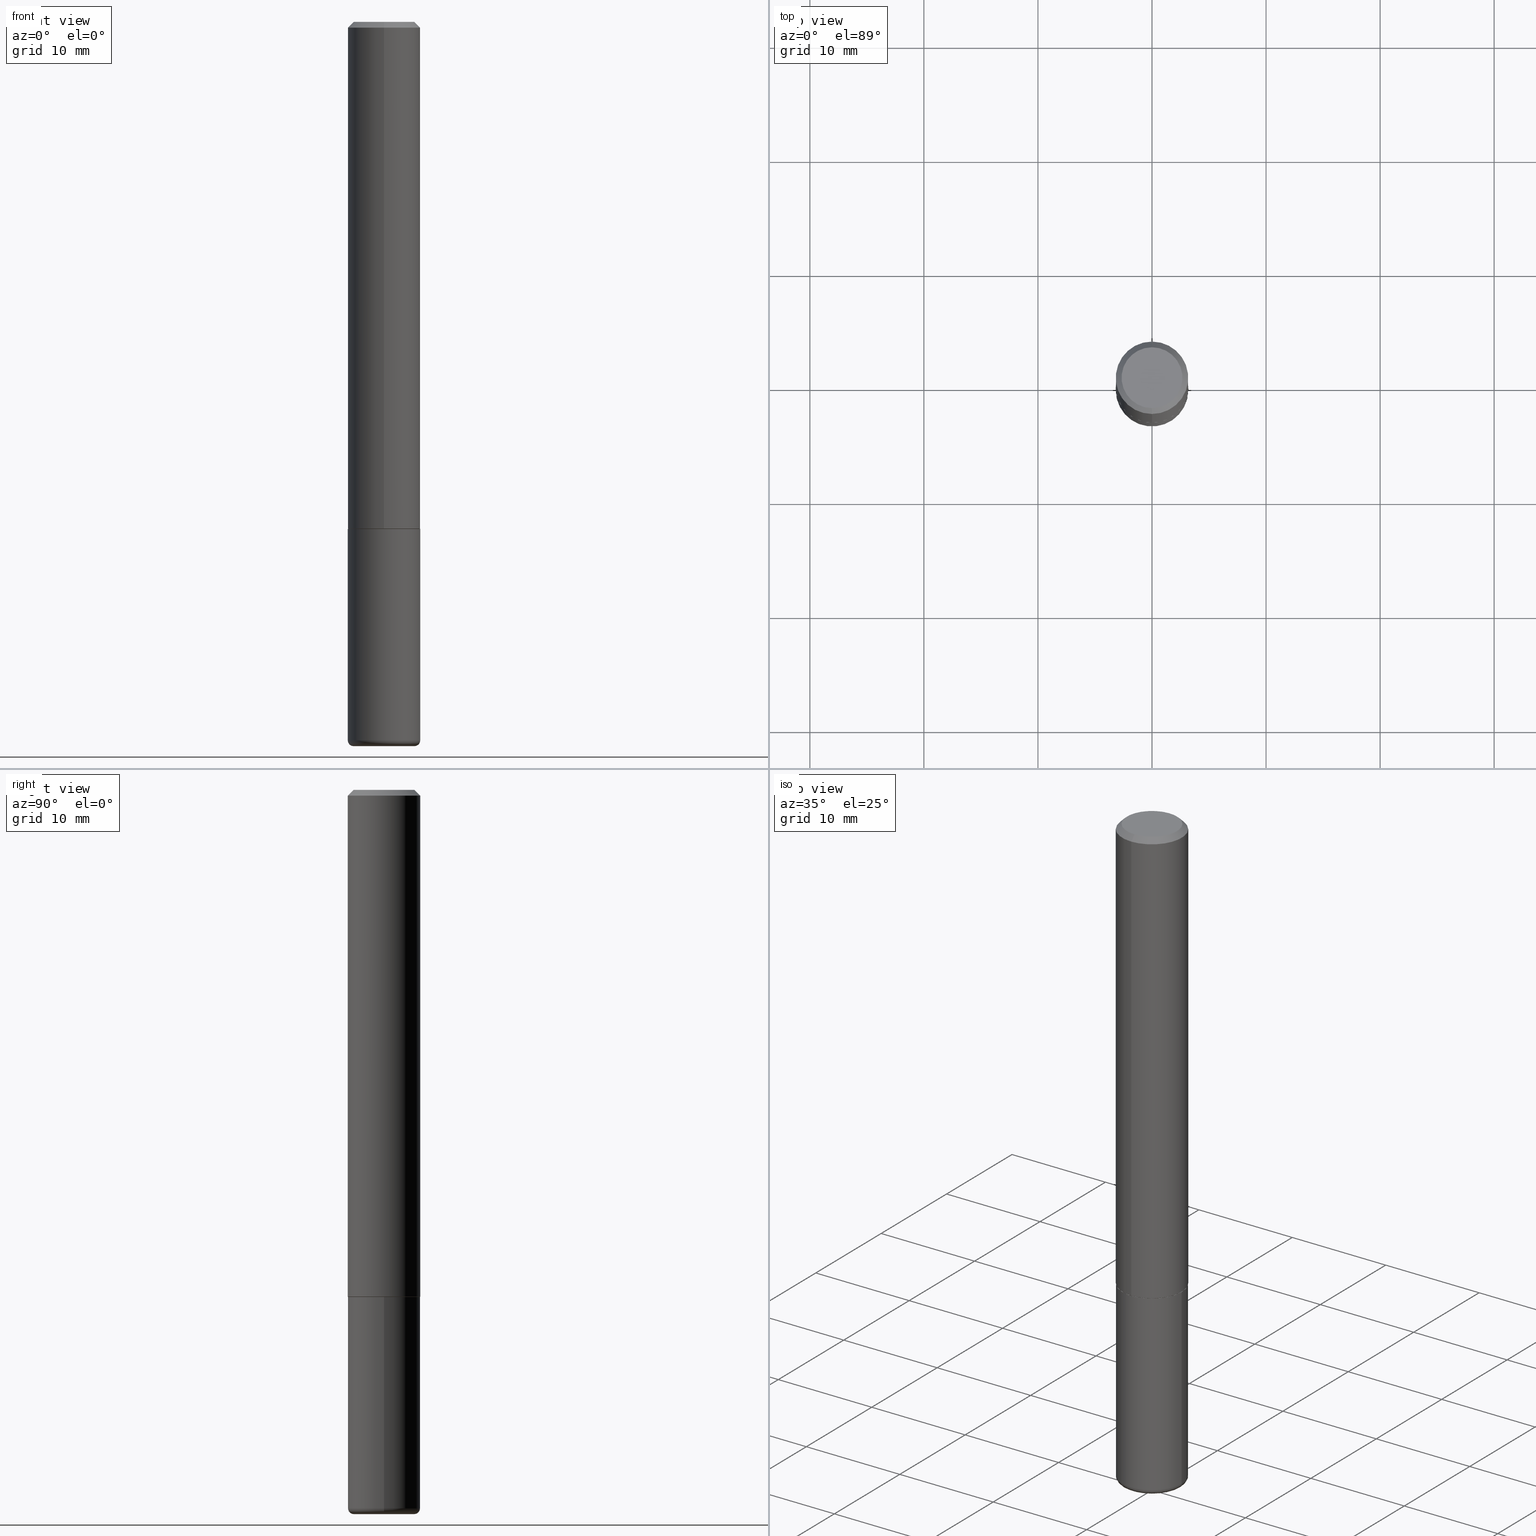
[diagram: canonical four-view strip — front | top / right | iso, engineering-drawing reading convention]
A machine part, canonical four-view strip (front | top / right | iso — engineering-drawing reading convention). The complete STEP part file that produces these views, byte-faithful:
ISO-10303-21;
HEADER;
FILE_DESCRIPTION (( 'STEP AP203' ),
    '1' );
FILE_NAME ('38321.STEP',
    '2024-03-02T22:40:24',
    ( '' ),
    ( '' ),
    'SwSTEP 2.0',
    'SolidWorks 2023',
    '' );
FILE_SCHEMA (( 'CONFIG_CONTROL_DESIGN' ));
ENDSEC;

DATA;
#1 = AXIS2_PLACEMENT_3D ( 'NONE', #257, #198, #285 ) ;
#2 = APPLICATION_PROTOCOL_DEFINITION ( 'international standard', 'config_control_design', 1994, #5 ) ;
#3 = TOROIDAL_SURFACE ( 'NONE', #162, 0.1050000000000000100, 0.02000000000000015307 ) ;
#4 = PERSON_AND_ORGANIZATION ( #102, #15 ) ;
#5 = APPLICATION_CONTEXT ( 'configuration controlled 3d designs of mechanical parts and assemblies' ) ;
#6 = AXIS2_PLACEMENT_3D ( 'NONE', #339, #272, #114 ) ;
#7 = AXIS2_PLACEMENT_3D ( 'NONE', #172, #295, #64 ) ;
#8 = ADVANCED_FACE ( 'NONE', ( #385 ), #233, .T. ) ;
#9 = DIRECTION ( 'NONE',  ( -2.445468806185136597E-29, 3.491481338843145583E-15, 1.000000000000000000 ) ) ;
#10 = ORIENTED_EDGE ( 'NONE', *, *, #237, .F. ) ;
#11 = ORIENTED_EDGE ( 'NONE', *, *, #268, .T. ) ;
#12 = ADVANCED_FACE ( 'NONE', ( #173 ), #296, .T. ) ;
#13 = CARTESIAN_POINT ( 'NONE',  ( 8.881784197001260212E-16, 0.1250000000000001110, -4.364281115688010942E-16 ) ) ;
#14 = VERTEX_POINT ( 'NONE', #104 ) ;
#15 = ORGANIZATION ( 'UNSPECIFIED', 'UNSPECIFIED', '' ) ;
#16 = APPROVAL_ROLE ( '' ) ;
#17 = PLANE ( 'NONE',  #142 ) ;
#18 = ORIENTED_EDGE ( 'NONE', *, *, #237, .T. ) ;
#19 = CALENDAR_DATE ( 2024, 2, 3 ) ;
#20 = LINE ( 'NONE', #372, #78 ) ;
#21 = VERTEX_POINT ( 'NONE', #361 ) ;
#22 = APPROVAL_ROLE ( '' ) ;
#23 = FACE_OUTER_BOUND ( 'NONE', #373, .T. ) ;
#24 = AXIS2_PLACEMENT_3D ( 'NONE', #278, #405, #217 ) ;
#25 = ADVANCED_FACE ( 'NONE', ( #61 ), #343, .F. ) ;
#26 = AXIS2_PLACEMENT_3D ( 'NONE', #319, #413, #415 ) ;
#27 = CARTESIAN_POINT ( 'NONE',  ( -0.1050000000000000100, -7.912803847782896575E-15, -2.480000000000000426 ) ) ;
#28 = ORIENTED_EDGE ( 'NONE', *, *, #360, .F. ) ;
#29 = ORIENTED_EDGE ( 'NONE', *, *, #393, .F. ) ;
#30 = DIRECTION ( 'NONE',  ( -2.445508222420686392E-29, 3.491424892550405598E-15, 1.000000000000000000 ) ) ;
#31 = ORIENTED_EDGE ( 'NONE', *, *, #42, .F. ) ;
#32 = CLOSED_SHELL ( 'NONE', ( #353, #12, #347, #170, #8, #239, #223, #25 ) ) ;
#33 = DIRECTION ( 'NONE',  ( 6.982962677686265922E-15, 1.000000000000000000, -3.483106191921935554E-15 ) ) ;
#34 = ORIENTED_EDGE ( 'NONE', *, *, #128, .T. ) ;
#35 = ADVANCED_BREP_SHAPE_REPRESENTATION ( '38321', ( #157, #171, #211 ), #168 ) ;
#36 = FACE_OUTER_BOUND ( 'NONE', #74, .T. ) ;
#37 = DIRECTION ( 'NONE',  ( -2.445508222420686392E-29, 3.491424892550405598E-15, 1.000000000000000000 ) ) ;
#38 = ADVANCED_FACE ( 'NONE', ( #23 ), #17, .F. ) ;
#39 = VECTOR ( 'NONE', #281, 39.37007874015748143 ) ;
#40 = PERSON_AND_ORGANIZATION_ROLE ( 'classification_officer' ) ;
#41 = CYLINDRICAL_SURFACE ( 'NONE', #400, 0.1250000000000000000 ) ;
#42 = EDGE_CURVE ( 'NONE', #251, #124, #85, .T. ) ;
#43 = CIRCLE ( 'NONE', #397, 0.1050000000000000100 ) ;
#44 = AXIS2_PLACEMENT_3D ( 'NONE', #345, #289, #231 ) ;
#45 = ORIENTED_EDGE ( 'NONE', *, *, #268, .F. ) ;
#46 = APPROVAL_ROLE ( '' ) ;
#47 = CARTESIAN_POINT ( 'NONE',  ( 4.279570410823989044E-29, -6.110092342975505460E-15, -1.750000000000000222 ) ) ;
#48 = ORIENTED_EDGE ( 'NONE', *, *, #139, .F. ) ;
#49 = CC_DESIGN_PERSON_AND_ORGANIZATION_ASSIGNMENT ( #4, #116, ( #253 ) ) ;
#50 = DIRECTION ( 'NONE',  ( 6.982962677686265922E-15, 1.000000000000000000, -3.491424892550405992E-15 ) ) ;
#51 = CALENDAR_DATE ( 2024, 2, 3 ) ;
#52 = CARTESIAN_POINT ( 'NONE',  ( -8.658873720330540358E-16, -0.1240000000000061053, -1.749999999999999556 ) ) ;
#53 = ORIENTED_EDGE ( 'NONE', *, *, #132, .T. ) ;
#54 = APPROVAL_STATUS ( 'not_yet_approved' ) ;
#55 = CALENDAR_DATE ( 2024, 2, 3 ) ;
#56 = CARTESIAN_POINT ( 'NONE',  ( -0.1250000000000000000, 8.881784197001252323E-16, -6.148668862818632227E-30 ) ) ;
#57 = EDGE_CURVE ( 'NONE', #14, #389, #184, .T. ) ;
#58 = VERTEX_POINT ( 'NONE', #213 ) ;
#59 = PERSON_AND_ORGANIZATION ( #102, #15 ) ;
#60 = COORDINATED_UNIVERSAL_TIME_OFFSET ( 5, 0, .BEHIND. ) ;
#61 = FACE_OUTER_BOUND ( 'NONE', #376, .T. ) ;
#62 = CIRCLE ( 'NONE', #205, 0.1249999999999999861 ) ;
#63 = APPROVAL_STATUS ( 'not_yet_approved' ) ;
#64 = DIRECTION ( 'NONE',  ( 1.000000000000000000, -6.982962677686266711E-15, 4.876176775795935793E-29 ) ) ;
#65 = ORIENTED_EDGE ( 'NONE', *, *, #412, .F. ) ;
#66 = EDGE_CURVE ( 'NONE', #58, #14, #80, .T. ) ;
#67 = DIRECTION ( 'NONE',  ( -2.445508222420686392E-29, 3.491424892550405598E-15, 1.000000000000000000 ) ) ;
#68 = ORIENTED_EDGE ( 'NONE', *, *, #139, .T. ) ;
#69 = ORIENTED_EDGE ( 'NONE', *, *, #261, .F. ) ;
#70 = CARTESIAN_POINT ( 'NONE',  ( -0.1050000000000000100, -7.876664387595318143E-15, -2.500000000000000444 ) ) ;
#71 = CONICAL_SURFACE ( 'NONE', #358, 0.1239999999999999991, 0.7853981633975336552 ) ;
#72 = DIRECTION ( 'NONE',  ( -2.445508222420686392E-29, 3.491424892550405598E-15, 1.000000000000000000 ) ) ;
#73 = CARTESIAN_POINT ( 'NONE',  ( 0.000000000000000000, 0.000000000000000000, 0.000000000000000000 ) ) ;
#74 = EDGE_LOOP ( 'NONE', ( #131, #279, #335, #181 ) ) ;
#75 = EDGE_CURVE ( 'NONE', #251, #328, #410, .T. ) ;
#76 = AXIS2_PLACEMENT_3D ( 'NONE', #356, #326, #235 ) ;
#77 =( NAMED_UNIT ( * ) SI_UNIT ( $, .STERADIAN. ) SOLID_ANGLE_UNIT ( ) );
#78 = VECTOR ( 'NONE', #88, 39.37007874015748143 ) ;
#79 = LOCAL_TIME ( 17, 40, 24.00000000000000000, #366 ) ;
#80 = LINE ( 'NONE', #148, #316 ) ;
#81 = CARTESIAN_POINT ( 'NONE',  ( 6.064762639339139522E-29, -8.658873720331001644E-15, -2.480000000000000426 ) ) ;
#82 = APPROVAL ( #54, 'UNSPECIFIED' ) ;
#83 = PERSON_AND_ORGANIZATION ( #102, #15 ) ;
#84 = DIRECTION ( 'NONE',  ( 1.000000000000000000, -6.982962677686258033E-15, 0.000000000000000000 ) ) ;
#85 = CIRCLE ( 'NONE', #379, 0.1239999999999999991 ) ;
#86 = EDGE_LOOP ( 'NONE', ( #10, #31 ) ) ;
#87 = AXIS2_PLACEMENT_3D ( 'NONE', #229, #242, #303 ) ;
#88 = DIRECTION ( 'NONE',  ( -2.445468806185136877E-29, 3.491481338843145188E-15, 1.000000000000000000 ) ) ;
#89 = ORIENTED_EDGE ( 'NONE', *, *, #360, .T. ) ;
#90 = PLANE ( 'NONE',  #24 ) ;
#91 = DIRECTION ( 'NONE',  ( -6.982962677686265922E-15, -1.000000000000000000, 3.491424892550405203E-15 ) ) ;
#92 = AXIS2_PLACEMENT_3D ( 'NONE', #259, #387, #263 ) ;
#93 = DIRECTION ( 'NONE',  ( -6.982962677686265922E-15, -1.000000000000000000, 3.483106191921935554E-15 ) ) ;
#94 = CC_DESIGN_PERSON_AND_ORGANIZATION_ASSIGNMENT ( #374, #407, ( #196 ) ) ;
#95 = CARTESIAN_POINT ( 'NONE',  ( 6.064762639339139522E-29, -8.658873720331001644E-15, -2.480000000000000426 ) ) ;
#96 = EDGE_CURVE ( 'NONE', #351, #14, #244, .T. ) ;
#97 = CARTESIAN_POINT ( 'NONE',  ( 6.113672015462842613E-29, -8.728703347107866520E-15, -2.500000000000000444 ) ) ;
#98 = FACE_OUTER_BOUND ( 'NONE', #398, .T. ) ;
#99 = CC_DESIGN_PERSON_AND_ORGANIZATION_ASSIGNMENT ( #59, #40, ( #107 ) ) ;
#100 = VECTOR ( 'NONE', #401, 39.37007874015748143 ) ;
#101 = DIRECTION ( 'NONE',  ( 1.000000000000000000, -6.982962677686263555E-15, 0.000000000000000000 ) ) ;
#102 = PERSON ( 'UNSPECIFIED', 'UNSPECIFIED', 'UNSPECIFIED', ('UNSPECIFIED'), ('UNSPECIFIED'), ('UNSPECIFIED') ) ;
#103 = CARTESIAN_POINT ( 'NONE',  ( -8.658873720330540358E-16, -0.1240000000000061053, -1.749999999999999556 ) ) ;
#104 = CARTESIAN_POINT ( 'NONE',  ( -8.575622497214408537E-16, -0.1250000000000000555, -0.01999999999999959102 ) ) ;
#105 = CONICAL_SURFACE ( 'NONE', #283, 0.1239999999999999991, 0.7853981633975336552 ) ;
#106 = DIRECTION ( 'NONE',  ( 2.438088387897960049E-29, -3.491481338843145188E-15, -1.000000000000000000 ) ) ;
#107 = SECURITY_CLASSIFICATION ( '', '', #122 ) ;
#108 = ORIENTED_EDGE ( 'NONE', *, *, #42, .T. ) ;
#109 = APPLICATION_CONTEXT ( 'configuration controlled 3d designs of mechanical parts and assemblies' ) ;
#110 = PERSON_AND_ORGANIZATION ( #102, #15 ) ;
#111 = DIRECTION ( 'NONE',  ( -2.445468806185136597E-29, 3.491481338843145583E-15, 1.000000000000000000 ) ) ;
#112 = APPROVAL ( #183, 'UNSPECIFIED' ) ;
#113 = ORIENTED_EDGE ( 'NONE', *, *, #393, .T. ) ;
#114 = DIRECTION ( 'NONE',  ( -6.982962677686265922E-15, -1.000000000000000000, 3.483106191921935554E-15 ) ) ;
#115 = ORIENTED_EDGE ( 'NONE', *, *, #147, .F. ) ;
#116 = PERSON_AND_ORGANIZATION_ROLE ( 'design_owner' ) ;
#117 = PRODUCT_DEFINITION_SHAPE ( 'NONE', 'NONE',  #402 ) ;
#118 = SHAPE_DEFINITION_REPRESENTATION ( #117, #35 ) ;
#119 = CARTESIAN_POINT ( 'NONE',  ( -3.444620247508492526E-45, 4.917846019601490628E-31, 1.408549853125758547E-16 ) ) ;
#120 = CLOSED_SHELL ( 'NONE', ( #391, #276, #38, #334, #378, #206 ) ) ;
#121 = APPROVAL_PERSON_ORGANIZATION ( #110, #112, #16 ) ;
#122 = SECURITY_CLASSIFICATION_LEVEL ( 'unclassified' ) ;
#123 = DIRECTION ( 'NONE',  ( 4.937700262164543309E-15, 0.7071067811865444641, -0.7071067811865506814 ) ) ;
#124 = VERTEX_POINT ( 'NONE', #52 ) ;
#125 = FACE_OUTER_BOUND ( 'NONE', #246, .T. ) ;
#126 = DIRECTION ( 'NONE',  ( -2.445508222420686392E-29, 3.491424892550405598E-15, 1.000000000000000000 ) ) ;
#127 = FACE_OUTER_BOUND ( 'NONE', #404, .T. ) ;
#128 = EDGE_CURVE ( 'NONE', #351, #290, #178, .T. ) ;
#129 = FACE_OUTER_BOUND ( 'NONE', #417, .T. ) ;
#130 = DIRECTION ( 'NONE',  ( -6.982962677686265922E-15, -1.000000000000000000, 4.406206441393973340E-15 ) ) ;
#131 = ORIENTED_EDGE ( 'NONE', *, *, #214, .F. ) ;
#132 = EDGE_CURVE ( 'NONE', #328, #389, #306, .T. ) ;
#133 = FACE_OUTER_BOUND ( 'NONE', #255, .T. ) ;
#134 = ORIENTED_EDGE ( 'NONE', *, *, #327, .T. ) ;
#135 = VECTOR ( 'NONE', #314, 39.37007874015748143 ) ;
#136 = CARTESIAN_POINT ( 'NONE',  ( 0.000000000000000000, 0.000000000000000000, 0.000000000000000000 ) ) ;
#137 =( NAMED_UNIT ( * ) PLANE_ANGLE_UNIT ( ) SI_UNIT ( $, .RADIAN. ) );
#138 =( CONVERSION_BASED_UNIT ( 'INCH', #359 ) LENGTH_UNIT ( ) NAMED_UNIT ( #294 ) );
#139 = EDGE_CURVE ( 'NONE', #290, #389, #151, .T. ) ;
#140 = CARTESIAN_POINT ( 'NONE',  ( 6.064762639339139522E-29, -8.658873720331001644E-15, -2.480000000000000426 ) ) ;
#141 = PRODUCT_RELATED_PRODUCT_CATEGORY ( 'detail', '', ( #253 ) ) ;
#142 = AXIS2_PLACEMENT_3D ( 'NONE', #47, #106, #304 ) ;
#143 = CIRCLE ( 'NONE', #186, 0.1050000000000000100 ) ;
#144 = LINE ( 'NONE', #103, #150 ) ;
#145 = DIRECTION ( 'NONE',  ( -6.982962677686266711E-15, -1.000000000000000000, 3.491424892550405598E-15 ) ) ;
#146 = VERTEX_POINT ( 'NONE', #219 ) ;
#147 = EDGE_CURVE ( 'NONE', #241, #146, #406, .T. ) ;
#148 = CARTESIAN_POINT ( 'NONE',  ( -8.728703347107841277E-16, -0.1250000000000001110, 4.364281115688010942E-16 ) ) ;
#149 = EDGE_LOOP ( 'NONE', ( #267, #302, #355, #286 ) ) ;
#150 = VECTOR ( 'NONE', #204, 39.37007874015748143 ) ;
#151 = LINE ( 'NONE', #245, #344 ) ;
#152 = ORIENTED_EDGE ( 'NONE', *, *, #128, .F. ) ;
#153 = DATE_AND_TIME ( #51, #260 ) ;
#154 = DIRECTION ( 'NONE',  ( -2.445468806185136597E-29, 3.491481338843145583E-15, 1.000000000000000000 ) ) ;
#155 = ORIENTED_EDGE ( 'NONE', *, *, #261, .T. ) ;
#156 = DATE_AND_TIME ( #19, #330 ) ;
#157 = MANIFOLD_SOLID_BREP ( 'Body-Move/Copy2[1]', #120 ) ;
#158 = CARTESIAN_POINT ( 'NONE',  ( 8.810729923425669213E-16, 0.1239999999999938790, -1.750000000000000666 ) ) ;
#159 = ORIENTED_EDGE ( 'NONE', *, *, #96, .T. ) ;
#160 = PERSON_AND_ORGANIZATION ( #102, #15 ) ;
#161 = CARTESIAN_POINT ( 'NONE',  ( -0.1250000000000000000, -6.496304611953128320E-15, -1.750000000000000222 ) ) ;
#162 = AXIS2_PLACEMENT_3D ( 'NONE', #95, #232, #357 ) ;
#163 = CARTESIAN_POINT ( 'NONE',  ( 4.279639389236200976E-29, -6.109993561963209599E-15, -1.750000000000000222 ) ) ;
#164 = DIRECTION ( 'NONE',  ( 2.445508222420686392E-29, -3.491424892550405598E-15, -1.000000000000000000 ) ) ;
#165 = ORIENTED_EDGE ( 'NONE', *, *, #96, .F. ) ;
#166 = EDGE_LOOP ( 'NONE', ( #180, #53, #188, #305 ) ) ;
#167 = CARTESIAN_POINT ( 'NONE',  ( 8.846257060213682142E-16, 0.1239999999999938790, -1.750000000000000666 ) ) ;
#168 =( GEOMETRIC_REPRESENTATION_CONTEXT ( 3 ) GLOBAL_UNCERTAINTY_ASSIGNED_CONTEXT ( ( #399 ) ) GLOBAL_UNIT_ASSIGNED_CONTEXT ( ( #138, #137, #77 ) ) REPRESENTATION_CONTEXT ( 'NONE', 'WORKASPACE' ) );
#169 = DIRECTION ( 'NONE',  ( -2.445508222420685832E-29, 3.491424892550405992E-15, 1.000000000000000000 ) ) ;
#170 = ADVANCED_FACE ( 'NONE', ( #254 ), #210, .T. ) ;
#171 = MANIFOLD_SOLID_BREP ( 'Body-Move/Copy2[2]', #32 ) ;
#172 = CARTESIAN_POINT ( 'NONE',  ( 0.000000000000000000, 0.000000000000000000, 0.000000000000000000 ) ) ;
#173 = FACE_OUTER_BOUND ( 'NONE', #166, .T. ) ;
#174 = AXIS2_PLACEMENT_3D ( 'NONE', #215, #367, #309 ) ;
#175 = AXIS2_PLACEMENT_3D ( 'NONE', #73, #37, #265 ) ;
#176 = APPROVAL_PERSON_ORGANIZATION ( #348, #395, #22 ) ;
#177 = CARTESIAN_POINT ( 'NONE',  ( 0.1050000000000000100, -9.461914428264923263E-15, -2.500000000000000444 ) ) ;
#178 = CIRCLE ( 'NONE', #331, 0.1049999999999998712 ) ;
#179 = LOCAL_TIME ( 17, 40, 24.00000000000000000, #280 ) ;
#180 = ORIENTED_EDGE ( 'NONE', *, *, #300, .T. ) ;
#181 = ORIENTED_EDGE ( 'NONE', *, *, #288, .F. ) ;
#182 = DIRECTION ( 'NONE',  ( -6.982962677686265922E-15, -1.000000000000000000, 3.491424892550405203E-15 ) ) ;
#183 = APPROVAL_STATUS ( 'not_yet_approved' ) ;
#184 = CIRCLE ( 'NONE', #6, 0.1250000000000000000 ) ;
#185 = EDGE_CURVE ( 'NONE', #346, #403, #43, .T. ) ;
#186 = AXIS2_PLACEMENT_3D ( 'NONE', #97, #377, #320 ) ;
#187 = DIRECTION ( 'NONE',  ( -2.445508222420686392E-29, 3.491424892550405598E-15, 1.000000000000000000 ) ) ;
#188 = ORIENTED_EDGE ( 'NONE', *, *, #57, .F. ) ;
#189 = DIRECTION ( 'NONE',  ( 0.000000000000000000, 0.000000000000000000, 1.000000000000000000 ) ) ;
#190 = CARTESIAN_POINT ( 'NONE',  ( 6.113672015462842613E-29, -8.728703347107866520E-15, -2.500000000000000444 ) ) ;
#191 = EDGE_LOOP ( 'NONE', ( #165, #45, #68, #325 ) ) ;
#192 = DATE_AND_TIME ( #370, #179 ) ;
#193 = CARTESIAN_POINT ( 'NONE',  ( -8.575622497214408537E-16, -0.1250000000000000555, -0.01999999999999959102 ) ) ;
#194 = ORIENTED_EDGE ( 'NONE', *, *, #327, .F. ) ;
#195 = CARTESIAN_POINT ( 'NONE',  ( -7.889572697437253250E-16, -0.1049999999999998712, 5.074545990303680214E-16 ) ) ;
#196 = PRODUCT_DEFINITION_FORMATION_WITH_SPECIFIED_SOURCE ( 'ANY', '', #253, .NOT_KNOWN. ) ;
#197 = APPROVAL_DATE_TIME ( #409, #395 ) ;
#198 = DIRECTION ( 'NONE',  ( -2.445508222420686392E-29, 3.491424892550405598E-15, 1.000000000000000000 ) ) ;
#199 = CARTESIAN_POINT ( 'NONE',  ( 4.891016444841379090E-31, -6.982849785100820021E-17, -0.02000000000000002470 ) ) ;
#200 = ORIENTED_EDGE ( 'NONE', *, *, #75, .F. ) ;
#201 = DIRECTION ( 'NONE',  ( 1.000000000000000000, -6.982962677686262766E-15, 0.000000000000000000 ) ) ;
#202 = AXIS2_PLACEMENT_3D ( 'NONE', #354, #72, #91 ) ;
#203 = DIRECTION ( 'NONE',  ( 7.105427357601001859E-15, 1.000000000000000000, -3.491481338843145583E-15 ) ) ;
#204 = DIRECTION ( 'NONE',  ( -4.937700262164969294E-15, -0.7071067811866054154, 0.7071067811864896191 ) ) ;
#205 = AXIS2_PLACEMENT_3D ( 'NONE', #140, #269, #101 ) ;
#206 = ADVANCED_FACE ( 'NONE', ( #311 ), #90, .T. ) ;
#207 = CARTESIAN_POINT ( 'NONE',  ( 8.728703347107837333E-16, 0.1249999999999999306, -0.02000000000000046185 ) ) ;
#208 = CC_DESIGN_DATE_AND_TIME_ASSIGNMENT ( #342, #228, ( #107 ) ) ;
#209 = EDGE_CURVE ( 'NONE', #146, #21, #20, .T. ) ;
#210 = CONICAL_SURFACE ( 'NONE', #174, 0.1250000000000000000, 0.7853981633974473908 ) ;
#211 = AXIS2_PLACEMENT_3D ( 'NONE', #136, #189, #321 ) ;
#212 = CC_DESIGN_PERSON_AND_ORGANIZATION_ASSIGNMENT ( #83, #216, ( #402 ) ) ;
#213 = CARTESIAN_POINT ( 'NONE',  ( -8.728703347107421208E-16, -0.1250000000000063560, -1.748999999999999666 ) ) ;
#214 = EDGE_CURVE ( 'NONE', #241, #218, #341, .T. ) ;
#215 = CARTESIAN_POINT ( 'NONE',  ( 4.891016444841379090E-31, -6.982849785100820021E-17, -0.02000000000000002470 ) ) ;
#216 = PERSON_AND_ORGANIZATION_ROLE ( 'creator' ) ;
#217 = DIRECTION ( 'NONE',  ( -1.000000000000000000, 6.982962677686265922E-15, -4.876176775795935793E-29 ) ) ;
#218 = VERTEX_POINT ( 'NONE', #161 ) ;
#219 = CARTESIAN_POINT ( 'NONE',  ( 0.1250000000000000555, -9.531744055041784983E-15, -2.480000000000000426 ) ) ;
#220 = ORIENTED_EDGE ( 'NONE', *, *, #75, .T. ) ;
#221 = PERSON_AND_ORGANIZATION ( #102, #15 ) ;
#222 = PLANE ( 'NONE',  #362 ) ;
#223 = ADVANCED_FACE ( 'NONE', ( #284 ), #222, .F. ) ;
#224 = ORIENTED_EDGE ( 'NONE', *, *, #288, .T. ) ;
#225 = DIRECTION ( 'NONE',  ( -6.982962677686265922E-15, -1.000000000000000000, 4.406206441393973340E-15 ) ) ;
#226 = AXIS2_PLACEMENT_3D ( 'NONE', #199, #30, #93 ) ;
#227 = CC_DESIGN_APPROVAL ( #82, ( #196 ) ) ;
#228 = DATE_TIME_ROLE ( 'classification_date' ) ;
#229 = CARTESIAN_POINT ( 'NONE',  ( 4.277193881013780975E-29, -6.106502137070658644E-15, -1.749000000000000110 ) ) ;
#230 = CALENDAR_DATE ( 2024, 2, 3 ) ;
#231 = DIRECTION ( 'NONE',  ( 1.000000000000000000, -6.982962677686262766E-15, 0.000000000000000000 ) ) ;
#232 = DIRECTION ( 'NONE',  ( -2.445468806185136597E-29, 3.491481338843145583E-15, 1.000000000000000000 ) ) ;
#233 = CYLINDRICAL_SURFACE ( 'NONE', #175, 0.1250000000000001110 ) ;
#234 = CIRCLE ( 'NONE', #87, 0.1250000000000002498 ) ;
#235 = DIRECTION ( 'NONE',  ( 1.000000000000000000, -6.982962677686269077E-15, 4.883557194083113462E-29 ) ) ;
#236 =( LENGTH_UNIT ( ) NAMED_UNIT ( * ) SI_UNIT ( $, .METRE. ) );
#237 = EDGE_CURVE ( 'NONE', #124, #251, #274, .T. ) ;
#238 = CARTESIAN_POINT ( 'NONE',  ( 0.000000000000000000, 0.000000000000000000, 0.000000000000000000 ) ) ;
#239 = ADVANCED_FACE ( 'NONE', ( #129 ), #105, .T. ) ;
#240 = ORIENTED_EDGE ( 'NONE', *, *, #412, .T. ) ;
#241 = VERTEX_POINT ( 'NONE', #291 ) ;
#242 = DIRECTION ( 'NONE',  ( -2.445508222420686392E-29, 3.491424892550405598E-15, 1.000000000000000000 ) ) ;
#243 = CIRCLE ( 'NONE', #44, 0.1250000000000000000 ) ;
#244 = LINE ( 'NONE', #193, #39 ) ;
#245 = CARTESIAN_POINT ( 'NONE',  ( 8.728703347107837333E-16, 0.1249999999999999306, -0.02000000000000046185 ) ) ;
#246 = EDGE_LOOP ( 'NONE', ( #152, #159, #365, #48 ) ) ;
#247 = DIRECTION ( 'NONE',  ( -2.445508222420686392E-29, 3.491424892550405992E-15, 1.000000000000000000 ) ) ;
#248 = ORIENTED_EDGE ( 'NONE', *, *, #300, .F. ) ;
#249 = COORDINATED_UNIVERSAL_TIME_OFFSET ( 5, 0, .BEHIND. ) ;
#250 = DIRECTION ( 'NONE',  ( 1.000000000000000000, -6.982962677686263555E-15, 0.000000000000000000 ) ) ;
#251 = VERTEX_POINT ( 'NONE', #167 ) ;
#252 = EDGE_CURVE ( 'NONE', #389, #14, #298, .T. ) ;
#253 = PRODUCT ( '38321', '38321', '', ( #270 ) ) ;
#254 = FACE_OUTER_BOUND ( 'NONE', #191, .T. ) ;
#255 = EDGE_LOOP ( 'NONE', ( #18, #220, #248, #29 ) ) ;
#256 = CC_DESIGN_PERSON_AND_ORGANIZATION_ASSIGNMENT ( #160, #282, ( #196 ) ) ;
#257 = CARTESIAN_POINT ( 'NONE',  ( 4.279639389236200976E-29, -6.109993561963209599E-15, -1.750000000000000222 ) ) ;
#258 = VECTOR ( 'NONE', #247, 39.37007874015748143 ) ;
#259 = CARTESIAN_POINT ( 'NONE',  ( 0.1050000000000000100, -9.392084801488059965E-15, -2.480000000000000426 ) ) ;
#260 = LOCAL_TIME ( 17, 40, 24.00000000000000000, #315 ) ;
#261 = EDGE_CURVE ( 'NONE', #403, #346, #143, .T. ) ;
#262 = CYLINDRICAL_SURFACE ( 'NONE', #7, 0.1250000000000000000 ) ;
#263 = DIRECTION ( 'NONE',  ( 1.000000000000000000, -6.982962677686275388E-15, 0.000000000000000000 ) ) ;
#264 = CARTESIAN_POINT ( 'NONE',  ( 4.279639389236200976E-29, -6.109993561963209599E-15, -1.750000000000000222 ) ) ;
#265 = DIRECTION ( 'NONE',  ( -6.982962677686266711E-15, -1.000000000000000000, 3.491424892550405598E-15 ) ) ;
#266 = CC_DESIGN_APPROVAL ( #395, ( #107 ) ) ;
#267 = ORIENTED_EDGE ( 'NONE', *, *, #132, .F. ) ;
#268 = EDGE_CURVE ( 'NONE', #290, #351, #324, .T. ) ;
#269 = DIRECTION ( 'NONE',  ( -2.445468806185136597E-29, 3.491481338843145583E-15, 1.000000000000000000 ) ) ;
#270 = MECHANICAL_CONTEXT ( 'NONE', #5, 'mechanical' ) ;
#271 = ORIENTED_EDGE ( 'NONE', *, *, #312, .T. ) ;
#272 = DIRECTION ( 'NONE',  ( -2.445508222420686392E-29, 3.491424892550405598E-15, 1.000000000000000000 ) ) ;
#273 = ORIENTED_EDGE ( 'NONE', *, *, #209, .F. ) ;
#274 = CIRCLE ( 'NONE', #1, 0.1239999999999999991 ) ;
#275 = AXIS2_PLACEMENT_3D ( 'NONE', #416, #164, #33 ) ;
#276 = ADVANCED_FACE ( 'NONE', ( #127 ), #371, .T. ) ;
#277 = CARTESIAN_POINT ( 'NONE',  ( 7.332110811570570383E-16, 0.1049999999999998712, -2.961721210615041531E-16 ) ) ;
#278 = CARTESIAN_POINT ( 'NONE',  ( -2.970324451617953153E-29, -2.173750331693769768E-14, -2.500000000000000000 ) ) ;
#279 = ORIENTED_EDGE ( 'NONE', *, *, #147, .T. ) ;
#280 = COORDINATED_UNIVERSAL_TIME_OFFSET ( 5, 0, .BEHIND. ) ;
#281 = DIRECTION ( 'NONE',  ( -4.851104656540959542E-15, -0.7071067811865493491, -0.7071067811865457964 ) ) ;
#282 = PERSON_AND_ORGANIZATION_ROLE ( 'creator' ) ;
#283 = AXIS2_PLACEMENT_3D ( 'NONE', #293, #67, #225 ) ;
#284 = FACE_OUTER_BOUND ( 'NONE', #86, .T. ) ;
#285 = DIRECTION ( 'NONE',  ( -6.982962677686265922E-15, -1.000000000000000000, 4.406206441393973340E-15 ) ) ;
#286 = ORIENTED_EDGE ( 'NONE', *, *, #252, .F. ) ;
#287 = DESIGN_CONTEXT ( 'detailed design', #109, 'design' ) ;
#288 = EDGE_CURVE ( 'NONE', #218, #21, #408, .T. ) ;
#289 = DIRECTION ( 'NONE',  ( -2.445468806185136597E-29, 3.491481338843145583E-15, 1.000000000000000000 ) ) ;
#290 = VERTEX_POINT ( 'NONE', #414 ) ;
#291 = CARTESIAN_POINT ( 'NONE',  ( -0.1250000000000000555, -7.770695300630876412E-15, -2.480000000000000426 ) ) ;
#292 = CONICAL_SURFACE ( 'NONE', #275, 0.1250000000000000000, 0.7853981633974473908 ) ;
#293 = CARTESIAN_POINT ( 'NONE',  ( 4.279639389236200976E-29, -6.109993561963209599E-15, -1.750000000000000222 ) ) ;
#294 = DIMENSIONAL_EXPONENTS ( 1.000000000000000000, 0.000000000000000000, 0.000000000000000000, 0.000000000000000000, 0.000000000000000000, 0.000000000000000000, 0.000000000000000000 ) ;
#295 = DIRECTION ( 'NONE',  ( -2.445468806185136597E-29, 3.491481338843145583E-15, 1.000000000000000000 ) ) ;
#296 = CYLINDRICAL_SURFACE ( 'NONE', #322, 0.1250000000000001110 ) ;
#297 = ORIENTED_EDGE ( 'NONE', *, *, #312, .F. ) ;
#298 = CIRCLE ( 'NONE', #226, 0.1250000000000000000 ) ;
#299 = APPROVAL_PERSON_ORGANIZATION ( #221, #82, #46 ) ;
#300 = EDGE_CURVE ( 'NONE', #58, #328, #380, .T. ) ;
#301 = DIRECTION ( 'NONE',  ( 1.000000000000000000, -6.982962677686266711E-15, 4.876176775795935793E-29 ) ) ;
#302 = ORIENTED_EDGE ( 'NONE', *, *, #383, .T. ) ;
#303 = DIRECTION ( 'NONE',  ( -6.982962677686265133E-15, -1.000000000000000000, 4.370956789862812472E-15 ) ) ;
#304 = DIRECTION ( 'NONE',  ( -1.000000000000000000, 6.982962677686265922E-15, -4.876176775795935793E-29 ) ) ;
#305 = ORIENTED_EDGE ( 'NONE', *, *, #66, .F. ) ;
#306 = LINE ( 'NONE', #13, #258 ) ;
#307 = ORIENTED_EDGE ( 'NONE', *, *, #185, .T. ) ;
#308 = CC_DESIGN_APPROVAL ( #112, ( #402 ) ) ;
#309 = DIRECTION ( 'NONE',  ( 6.982962677686265922E-15, 1.000000000000000000, -3.483106191921935554E-15 ) ) ;
#310 = EDGE_LOOP ( 'NONE', ( #69, #394 ) ) ;
#311 = FACE_OUTER_BOUND ( 'NONE', #310, .T. ) ;
#312 = EDGE_CURVE ( 'NONE', #346, #241, #392, .T. ) ;
#313 = APPROVAL_DATE_TIME ( #192, #82 ) ;
#314 = DIRECTION ( 'NONE',  ( -2.445468806185136877E-29, 3.491481338843145188E-15, 1.000000000000000000 ) ) ;
#315 = COORDINATED_UNIVERSAL_TIME_OFFSET ( 5, 0, .BEHIND. ) ;
#316 = VECTOR ( 'NONE', #396, 39.37007874015748143 ) ;
#317 = CC_DESIGN_SECURITY_CLASSIFICATION ( #107, ( #196 ) ) ;
#318 = DIRECTION ( 'NONE',  ( -2.445468806185136597E-29, 3.491481338843145583E-15, 1.000000000000000000 ) ) ;
#319 = CARTESIAN_POINT ( 'NONE',  ( 4.277193881013780975E-29, -6.106502137070658644E-15, -1.749000000000000110 ) ) ;
#320 = DIRECTION ( 'NONE',  ( 1.000000000000000000, -6.982962677686258033E-15, 0.000000000000000000 ) ) ;
#321 = DIRECTION ( 'NONE',  ( 1.000000000000000000, 0.000000000000000000, 0.000000000000000000 ) ) ;
#322 = AXIS2_PLACEMENT_3D ( 'NONE', #418, #126, #145 ) ;
#323 = CARTESIAN_POINT ( 'NONE',  ( 8.881784197001479121E-16, 0.1249999999999941019, -1.749000000000000554 ) ) ;
#324 = CIRCLE ( 'NONE', #202, 0.1049999999999998712 ) ;
#325 = ORIENTED_EDGE ( 'NONE', *, *, #252, .T. ) ;
#326 = DIRECTION ( 'NONE',  ( -2.445468806185136597E-29, 3.491481338843145583E-15, 1.000000000000000000 ) ) ;
#327 = EDGE_CURVE ( 'NONE', #21, #218, #243, .T. ) ;
#328 = VERTEX_POINT ( 'NONE', #323 ) ;
#329 = CC_DESIGN_DATE_AND_TIME_ASSIGNMENT ( #156, #340, ( #402 ) ) ;
#330 = LOCAL_TIME ( 17, 40, 24.00000000000000000, #249 ) ;
#331 = AXIS2_PLACEMENT_3D ( 'NONE', #119, #375, #182 ) ;
#332 = AXIS2_PLACEMENT_3D ( 'NONE', #349, #318, #201 ) ;
#333 = ORIENTED_EDGE ( 'NONE', *, *, #383, .F. ) ;
#334 = ADVANCED_FACE ( 'NONE', ( #36 ), #262, .T. ) ;
#335 = ORIENTED_EDGE ( 'NONE', *, *, #209, .T. ) ;
#336 = DIRECTION ( 'NONE',  ( -6.982962677686265922E-15, -1.000000000000000000, 4.406206441393973340E-15 ) ) ;
#337 = DIRECTION ( 'NONE',  ( 2.445508222420685832E-29, -3.491424892550405992E-15, -1.000000000000000000 ) ) ;
#338 = CIRCLE ( 'NONE', #92, 0.02000000000000016348 ) ;
#339 = CARTESIAN_POINT ( 'NONE',  ( 4.891016444841379090E-31, -6.982849785100820021E-17, -0.02000000000000002470 ) ) ;
#340 = DATE_TIME_ROLE ( 'creation_date' ) ;
#341 = LINE ( 'NONE', #56, #135 ) ;
#342 = DATE_AND_TIME ( #55, #79 ) ;
#343 = PLANE ( 'NONE',  #352 ) ;
#344 = VECTOR ( 'NONE', #123, 39.37007874015748143 ) ;
#345 = CARTESIAN_POINT ( 'NONE',  ( 4.279570410823989044E-29, -6.110092342975505460E-15, -1.750000000000000222 ) ) ;
#346 = VERTEX_POINT ( 'NONE', #70 ) ;
#347 = ADVANCED_FACE ( 'NONE', ( #125 ), #292, .T. ) ;
#348 = PERSON_AND_ORGANIZATION ( #102, #15 ) ;
#349 = CARTESIAN_POINT ( 'NONE',  ( 4.279570410823989044E-29, -6.110092342975505460E-15, -1.750000000000000222 ) ) ;
#350 = DIRECTION ( 'NONE',  ( -6.982962677686265922E-15, -1.000000000000000000, 3.491424892550405992E-15 ) ) ;
#351 = VERTEX_POINT ( 'NONE', #195 ) ;
#352 = AXIS2_PLACEMENT_3D ( 'NONE', #277, #337, #50 ) ;
#353 = ADVANCED_FACE ( 'NONE', ( #133 ), #71, .T. ) ;
#354 = CARTESIAN_POINT ( 'NONE',  ( -3.444620247508492526E-45, 4.917846019601490628E-31, 1.408549853125758547E-16 ) ) ;
#355 = ORIENTED_EDGE ( 'NONE', *, *, #66, .T. ) ;
#356 = CARTESIAN_POINT ( 'NONE',  ( 6.064762639339139522E-29, -8.658873720331001644E-15, -2.480000000000000426 ) ) ;
#357 = DIRECTION ( 'NONE',  ( 1.000000000000000000, -6.982962677686269077E-15, 4.883557194083113462E-29 ) ) ;
#358 = AXIS2_PLACEMENT_3D ( 'NONE', #264, #382, #130 ) ;
#359 = LENGTH_MEASURE_WITH_UNIT ( LENGTH_MEASURE( 0.02539999999999999897 ), #236 );
#360 = EDGE_CURVE ( 'NONE', #403, #146, #338, .T. ) ;
#361 = CARTESIAN_POINT ( 'NONE',  ( 0.1250000000000000000, -6.982962677686288010E-15, -1.750000000000000222 ) ) ;
#362 = AXIS2_PLACEMENT_3D ( 'NONE', #163, #169, #350 ) ;
#363 = AXIS2_PLACEMENT_3D ( 'NONE', #27, #203, #384 ) ;
#364 = CARTESIAN_POINT ( 'NONE',  ( 4.279639389236200976E-29, -6.109993561963209599E-15, -1.750000000000000222 ) ) ;
#365 = ORIENTED_EDGE ( 'NONE', *, *, #57, .T. ) ;
#366 = COORDINATED_UNIVERSAL_TIME_OFFSET ( 5, 0, .BEHIND. ) ;
#367 = DIRECTION ( 'NONE',  ( 2.445508222420686392E-29, -3.491424892550405598E-15, -1.000000000000000000 ) ) ;
#368 = APPLICATION_PROTOCOL_DEFINITION ( 'international standard', 'config_control_design', 1994, #109 ) ;
#369 = ORIENTED_EDGE ( 'NONE', *, *, #214, .T. ) ;
#370 = CALENDAR_DATE ( 2024, 2, 3 ) ;
#371 = TOROIDAL_SURFACE ( 'NONE', #76, 0.1050000000000000100, 0.02000000000000015307 ) ;
#372 = CARTESIAN_POINT ( 'NONE',  ( 0.1250000000000000000, -8.728703347107833388E-16, 6.095220969744919741E-30 ) ) ;
#373 = EDGE_LOOP ( 'NONE', ( #134, #224 ) ) ;
#374 = PERSON_AND_ORGANIZATION ( #102, #15 ) ;
#375 = DIRECTION ( 'NONE',  ( -2.445508222420686392E-29, 3.491424892550405598E-15, 1.000000000000000000 ) ) ;
#376 = EDGE_LOOP ( 'NONE', ( #11, #34 ) ) ;
#377 = DIRECTION ( 'NONE',  ( -2.445468806185136597E-29, 3.491481338843145583E-15, 1.000000000000000000 ) ) ;
#378 = ADVANCED_FACE ( 'NONE', ( #381 ), #3, .T. ) ;
#379 = AXIS2_PLACEMENT_3D ( 'NONE', #364, #187, #336 ) ;
#380 = CIRCLE ( 'NONE', #26, 0.1250000000000002498 ) ;
#381 = FACE_OUTER_BOUND ( 'NONE', #390, .T. ) ;
#382 = DIRECTION ( 'NONE',  ( -2.445508222420686392E-29, 3.491424892550405598E-15, 1.000000000000000000 ) ) ;
#383 = EDGE_CURVE ( 'NONE', #328, #58, #234, .T. ) ;
#384 = DIRECTION ( 'NONE',  ( -1.000000000000000000, 7.105427357601014480E-15, 0.000000000000000000 ) ) ;
#385 = FACE_OUTER_BOUND ( 'NONE', #149, .T. ) ;
#386 = AXIS2_PLACEMENT_3D ( 'NONE', #81, #111, #250 ) ;
#387 = DIRECTION ( 'NONE',  ( -6.982962677686266711E-15, -1.000000000000000000, 3.491481338843145583E-15 ) ) ;
#388 = LOCAL_TIME ( 17, 40, 24.00000000000000000, #60 ) ;
#389 = VERTEX_POINT ( 'NONE', #207 ) ;
#390 = EDGE_LOOP ( 'NONE', ( #297, #307, #89, #115 ) ) ;
#391 = ADVANCED_FACE ( 'NONE', ( #98 ), #41, .T. ) ;
#392 = CIRCLE ( 'NONE', #363, 0.02000000000000016348 ) ;
#393 = EDGE_CURVE ( 'NONE', #124, #58, #144, .T. ) ;
#394 = ORIENTED_EDGE ( 'NONE', *, *, #185, .F. ) ;
#395 = APPROVAL ( #63, 'UNSPECIFIED' ) ;
#396 = DIRECTION ( 'NONE',  ( -2.445508222420686392E-29, 3.491424892550405992E-15, 1.000000000000000000 ) ) ;
#397 = AXIS2_PLACEMENT_3D ( 'NONE', #190, #154, #84 ) ;
#398 = EDGE_LOOP ( 'NONE', ( #240, #369, #194, #273 ) ) ;
#399 = UNCERTAINTY_MEASURE_WITH_UNIT (LENGTH_MEASURE( 1.000000000000000082E-05 ), #138, 'distance_accuracy_value', 'NONE');
#400 = AXIS2_PLACEMENT_3D ( 'NONE', #238, #9, #301 ) ;
#401 = DIRECTION ( 'NONE',  ( 5.024295867788490741E-15, 0.7071067811866103003, 0.7071067811864847341 ) ) ;
#402 = PRODUCT_DEFINITION ( 'UNKNOWN', '', #196, #287 ) ;
#403 = VERTEX_POINT ( 'NONE', #177 ) ;
#404 = EDGE_LOOP ( 'NONE', ( #155, #271, #65, #28 ) ) ;
#405 = DIRECTION ( 'NONE',  ( 2.438088387897960049E-29, -3.491481338843145188E-15, -1.000000000000000000 ) ) ;
#406 = CIRCLE ( 'NONE', #386, 0.1249999999999999861 ) ;
#407 = PERSON_AND_ORGANIZATION_ROLE ( 'design_supplier' ) ;
#408 = CIRCLE ( 'NONE', #332, 0.1250000000000000000 ) ;
#409 = DATE_AND_TIME ( #230, #388 ) ;
#410 = LINE ( 'NONE', #158, #100 ) ;
#411 = APPROVAL_DATE_TIME ( #153, #112 ) ;
#412 = EDGE_CURVE ( 'NONE', #146, #241, #62, .T. ) ;
#413 = DIRECTION ( 'NONE',  ( -2.445508222420686392E-29, 3.491424892550405598E-15, 1.000000000000000000 ) ) ;
#414 = CARTESIAN_POINT ( 'NONE',  ( 8.030407079339204351E-16, 0.1049999999999998712, -2.257446284052162627E-16 ) ) ;
#415 = DIRECTION ( 'NONE',  ( -6.982962677686265133E-15, -1.000000000000000000, 4.370956789862812472E-15 ) ) ;
#416 = CARTESIAN_POINT ( 'NONE',  ( 4.891016444841379090E-31, -6.982849785100820021E-17, -0.02000000000000002470 ) ) ;
#417 = EDGE_LOOP ( 'NONE', ( #200, #108, #113, #333 ) ) ;
#418 = CARTESIAN_POINT ( 'NONE',  ( 0.000000000000000000, 0.000000000000000000, 0.000000000000000000 ) ) ;
ENDSEC;
END-ISO-10303-21;
